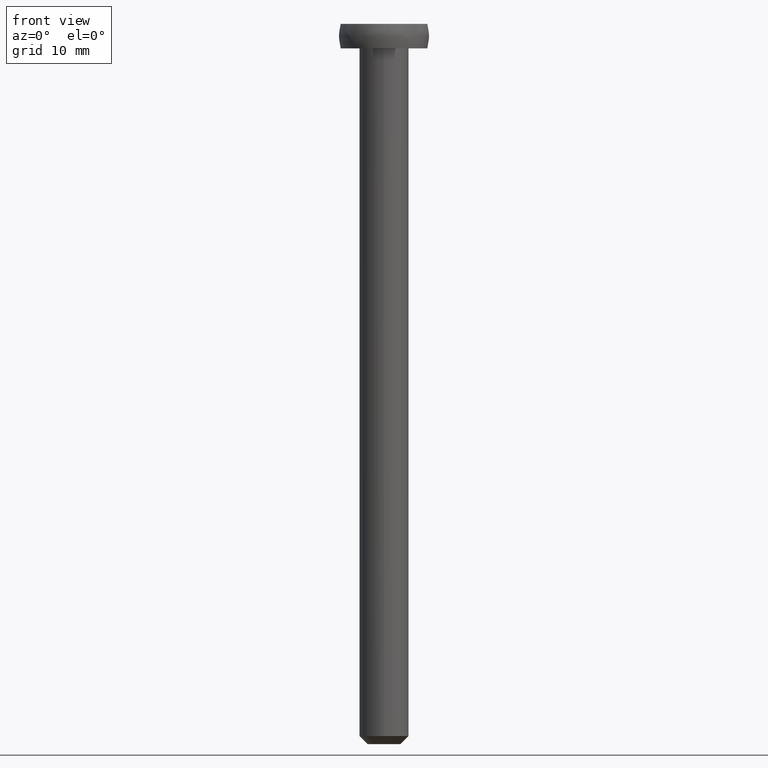
[diagram: clean part render]
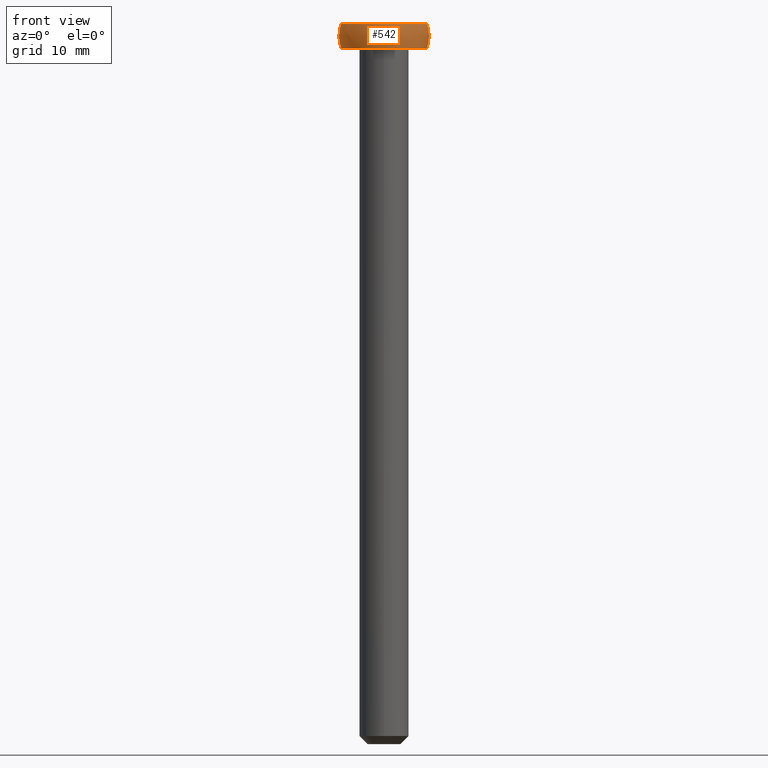
[diagram: same view with one face highlighted and labeled with its STEP entity id]
A machine part, front view. The second image highlights one B-rep face of the part: STEP entity #542.
In plain terms, the highlighted face is a freeform B-spline surface patch.
Its self-contained STEP definition (entity closure, byte-faithful):
#393=CARTESIAN_POINT('',(-5.291502000000000,0.0,85.0));
#394=VERTEX_POINT('',#393);
#395=CARTESIAN_POINT('',(5.291502000000000,0.0,85.0));
#396=VERTEX_POINT('',#395);
#397=CARTESIAN_POINT('',(-5.291502000000000,0.0,85.0));
#398=CARTESIAN_POINT('',(-5.291502000000000,5.291502000000000,85.0));
#399=CARTESIAN_POINT('',(0.0,5.291502000000000,85.0));
#400=CARTESIAN_POINT('',(5.291502000000000,5.291502000000000,85.0));
#401=CARTESIAN_POINT('',(5.291502000000000,0.0,85.0));
#409=(BOUNDED_CURVE()B_SPLINE_CURVE(2,(#397,#398,#399,#400,#401),.UNSPECIFIED.,.F.,.U.)B_SPLINE_CURVE_WITH_KNOTS((3,2,3),(0.0,0.250000000000000,0.500000000000000),.UNSPECIFIED.)CURVE()GEOMETRIC_REPRESENTATION_ITEM()RATIONAL_B_SPLINE_CURVE((1.0,0.707106781186548,1.0,0.707106781186548,1.0))REPRESENTATION_ITEM(''));
#410=EDGE_CURVE('',#394,#396,#409,.T.);
#412=CARTESIAN_POINT('',(5.291502000000000,0.0,85.0));
#413=CARTESIAN_POINT('',(5.291502000000000,-5.291502000000000,85.0));
#414=CARTESIAN_POINT('',(0.0,-5.291502000000000,85.0));
#415=CARTESIAN_POINT('',(-5.291502000000000,-5.291502000000000,85.0));
#416=CARTESIAN_POINT('',(-5.291502000000000,0.0,85.0));
#424=(BOUNDED_CURVE()B_SPLINE_CURVE(2,(#412,#413,#414,#415,#416),.UNSPECIFIED.,.F.,.U.)B_SPLINE_CURVE_WITH_KNOTS((3,2,3),(0.500000000000000,0.750000000000000,1.0),.UNSPECIFIED.)CURVE()GEOMETRIC_REPRESENTATION_ITEM()RATIONAL_B_SPLINE_CURVE((1.0,0.707106781186548,1.0,0.707106781186548,1.0))REPRESENTATION_ITEM(''));
#425=EDGE_CURVE('',#396,#394,#424,.T.);
#453=CARTESIAN_POINT('',(5.291502000000000,0.0,88.0));
#454=VERTEX_POINT('',#453);
#455=CARTESIAN_POINT('',(-5.291502000000000,0.0,88.0));
#456=VERTEX_POINT('',#455);
#457=CARTESIAN_POINT('',(5.291502000000000,0.0,88.0));
#458=CARTESIAN_POINT('',(5.291502000000000,-5.291502000000000,88.0));
#459=CARTESIAN_POINT('',(0.0,-5.291502000000000,88.0));
#460=CARTESIAN_POINT('',(-5.291502000000000,-5.291502000000000,88.0));
#461=CARTESIAN_POINT('',(-5.291502000000000,0.0,88.0));
#469=(BOUNDED_CURVE()B_SPLINE_CURVE(2,(#457,#458,#459,#460,#461),.UNSPECIFIED.,.F.,.U.)B_SPLINE_CURVE_WITH_KNOTS((3,2,3),(0.500000000000000,0.750000000000000,1.0),.UNSPECIFIED.)CURVE()GEOMETRIC_REPRESENTATION_ITEM()RATIONAL_B_SPLINE_CURVE((1.0,0.707106781186548,1.0,0.707106781186548,1.0))REPRESENTATION_ITEM(''));
#470=EDGE_CURVE('',#454,#456,#469,.T.);
#472=CARTESIAN_POINT('',(-5.291502000000000,0.0,88.0));
#473=CARTESIAN_POINT('',(-5.291502000000000,5.291502000000000,88.0));
#474=CARTESIAN_POINT('',(0.0,5.291502000000000,88.0));
#475=CARTESIAN_POINT('',(5.291502000000000,5.291502000000000,88.0));
#476=CARTESIAN_POINT('',(5.291502000000000,0.0,88.0));
#484=(BOUNDED_CURVE()B_SPLINE_CURVE(2,(#472,#473,#474,#475,#476),.UNSPECIFIED.,.F.,.U.)B_SPLINE_CURVE_WITH_KNOTS((3,2,3),(0.0,0.250000000000000,0.500000000000000),.UNSPECIFIED.)CURVE()GEOMETRIC_REPRESENTATION_ITEM()RATIONAL_B_SPLINE_CURVE((1.0,0.707106781186548,1.0,0.707106781186548,1.0))REPRESENTATION_ITEM(''));
#485=EDGE_CURVE('',#456,#454,#484,.T.);
#490=CARTESIAN_POINT('',(-3.164920383337690,3.164920383337686,89.696335078534034));
#491=CARTESIAN_POINT('',(-2.958400293070957,3.944533724094605,89.128874388254502));
#492=CARTESIAN_POINT('',(-1.308441110860389,5.233764443441549,88.190476190476176));
#493=CARTESIAN_POINT('',(1.308441110860386,5.233764443441549,88.190476190476204));
#494=CARTESIAN_POINT('',(2.958400293070954,3.944533724094605,89.128874388254502));
#495=CARTESIAN_POINT('',(3.164920383337686,3.164920383337686,89.696335078534034));
#496=CARTESIAN_POINT('',(-3.944533724094610,2.958400293070954,89.128874388254502));
#497=CARTESIAN_POINT('',(-3.925323332581163,3.925323332581160,88.190476190476176));
#498=CARTESIAN_POINT('',(-1.943729238641478,5.831187715924432,86.340836012861786));
#499=CARTESIAN_POINT('',(1.943729238641479,5.831187715924432,86.340836012861786));
#500=CARTESIAN_POINT('',(3.925323332581160,3.925323332581160,88.190476190476204));
#501=CARTESIAN_POINT('',(3.944533724094605,2.958400293070954,89.128874388254502));
#502=CARTESIAN_POINT('',(-5.233764443441549,1.308441110860386,88.190476190476176));
#503=CARTESIAN_POINT('',(-5.831187715924437,1.943729238641478,86.340836012861786));
#504=CARTESIAN_POINT('',(-3.778123707609380,3.778123707609387,81.0));
#505=CARTESIAN_POINT('',(3.778123707609390,3.778123707609387,81.000000000000014));
#506=CARTESIAN_POINT('',(5.831187715924432,1.943729238641478,86.340836012861786));
#507=CARTESIAN_POINT('',(5.233764443441546,1.308441110860386,88.190476190476204));
#508=CARTESIAN_POINT('',(-5.233764443441549,-1.308441110860388,88.190476190476176));
#509=CARTESIAN_POINT('',(-5.831187715924437,-1.943729238641478,86.340836012861786));
#510=CARTESIAN_POINT('',(-3.778123707609380,-3.778123707609382,81.0));
#511=CARTESIAN_POINT('',(3.778123707609390,-3.778123707609382,81.0));
#512=CARTESIAN_POINT('',(5.831187715924432,-1.943729238641478,86.340836012861786));
#513=CARTESIAN_POINT('',(5.233764443441546,-1.308441110860388,88.190476190476204));
#514=CARTESIAN_POINT('',(-3.944533724094610,-2.958400293070957,89.128874388254502));
#515=CARTESIAN_POINT('',(-3.925323332581163,-3.925323332581163,88.190476190476176));
#516=CARTESIAN_POINT('',(-1.943729238641478,-5.831187715924437,86.340836012861786));
#517=CARTESIAN_POINT('',(1.943729238641479,-5.831187715924437,86.340836012861786));
#518=CARTESIAN_POINT('',(3.925323332581160,-3.925323332581163,88.190476190476176));
#519=CARTESIAN_POINT('',(3.944533724094605,-2.958400293070957,89.128874388254502));
#520=CARTESIAN_POINT('',(-3.164920383337690,-3.164920383337690,89.696335078534034));
#521=CARTESIAN_POINT('',(-2.958400293070957,-3.944533724094608,89.128874388254502));
#522=CARTESIAN_POINT('',(-1.308441110860389,-5.233764443441549,88.190476190476176));
#523=CARTESIAN_POINT('',(1.308441110860386,-5.233764443441549,88.190476190476176));
#524=CARTESIAN_POINT('',(2.958400293070954,-3.944533724094608,89.128874388254502));
#525=CARTESIAN_POINT('',(3.164920383337686,-3.164920383337690,89.696335078534034));
#533=(BOUNDED_SURFACE()B_SPLINE_SURFACE(2,2,((#490,#496,#502,#508,#514,#520),(#491,#497,#503,#509,#515,#521),(#492,#498,#504,#510,#516,#522),(#493,#499,#505,#511,#517,#523),(#494,#500,#506,#512,#518,#524),(#495,#501,#507,#513,#519,#525)),.UNSPECIFIED.,.F.,.F.,.U.)B_SPLINE_SURFACE_WITH_KNOTS((3,1,1,1,3),(3,1,1,1,3),(0.0,6.113777933931729,12.227555867863460,18.341333801795191,24.455111735726920),(0.0,6.113777933931729,12.227555867863460,18.341333801795191,24.455111735726920),.UNSPECIFIED.)GEOMETRIC_REPRESENTATION_ITEM()RATIONAL_B_SPLINE_SURFACE(((4.775000000000025,3.831250000000019,2.887500000000013,2.887500000000013,3.831250000000019,4.775000000000025),(3.831250000000019,2.887500000000013,1.943750000000006,1.943750000000006,2.887500000000013,3.831250000000019),(2.887500000000013,1.943750000000006,1.0,1.0,1.943750000000006,2.887500000000013),(2.887500000000013,1.943750000000006,1.0,1.0,1.943750000000006,2.887500000000013),(3.831250000000019,2.887500000000013,1.943750000000006,1.943750000000006,2.887500000000013,3.831250000000019),(4.775000000000025,3.831250000000019,2.887500000000013,2.887500000000013,3.831250000000019,4.775000000000025)))REPRESENTATION_ITEM('')SURFACE());
#534=ORIENTED_EDGE('',*,*,#410,.F.);
#535=ORIENTED_EDGE('',*,*,#425,.F.);
#536=EDGE_LOOP('',(#534,#535));
#537=FACE_OUTER_BOUND('',#536,.T.);
#538=ORIENTED_EDGE('',*,*,#485,.T.);
#539=ORIENTED_EDGE('',*,*,#470,.T.);
#540=EDGE_LOOP('',(#538,#539));
#541=FACE_BOUND('',#540,.T.);
#542=ADVANCED_FACE('',(#537,#541),#533,.T.);